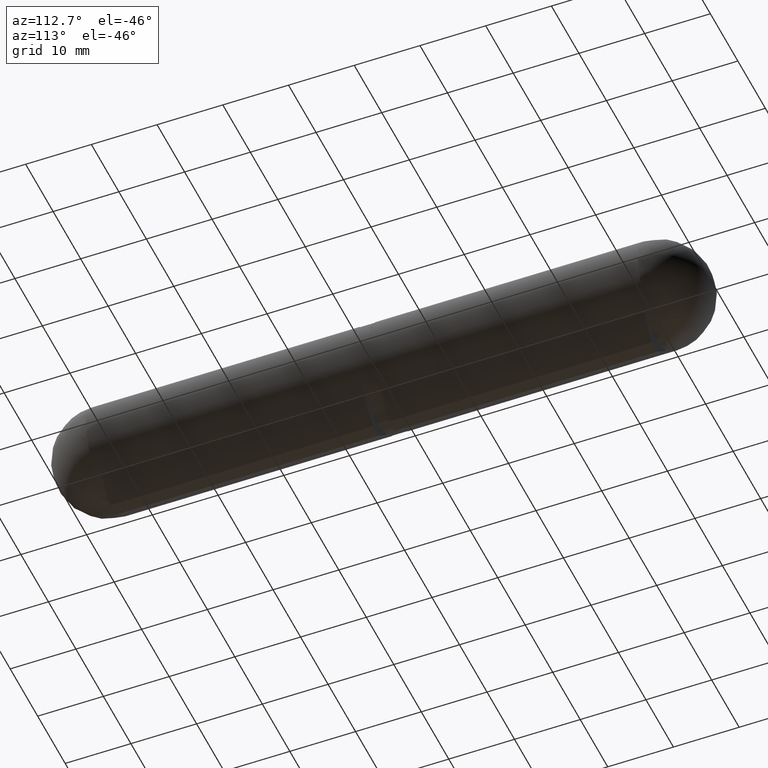
[diagram: clean part render]
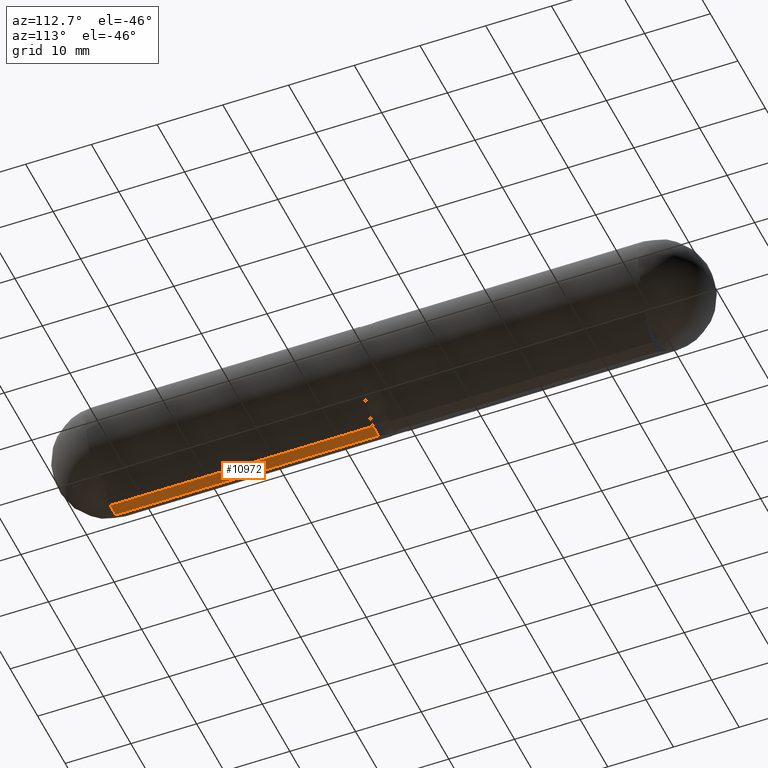
[diagram: same view with one face highlighted and labeled with its STEP entity id]
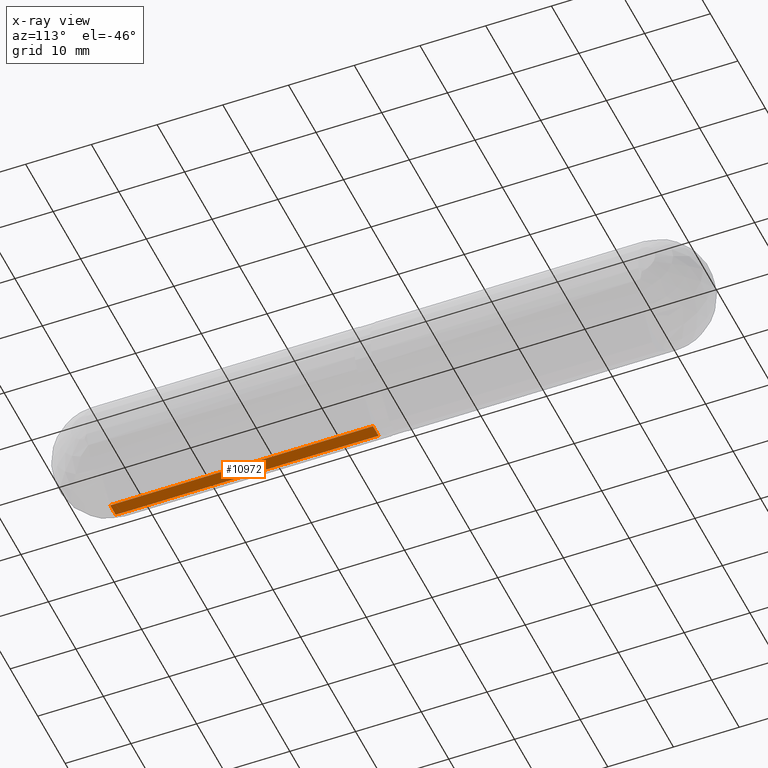
[diagram: x-ray of the same camera — body ghosted, the highlighted face saturated]
A machine part, auxiliary view. The second image highlights one B-rep face of the part: STEP entity #10972.
The next image is the same camera in x-ray: the body ghosted, the highlighted face saturated — about 0% of this face is hidden behind the body in this view.
In plain terms, the highlighted planar face has unit normal (0, 0, -1).
Its self-contained STEP definition (entity closure, byte-faithful):
#96 = CARTESIAN_POINT ( 'NONE',  ( 1.000000000000000000, 8.750000000000000000, -10.00000000000000000 ) ) ;
#697 = AXIS2_PLACEMENT_3D ( 'NONE', #3124, #6130, #10112 ) ;
#867 = DIRECTION ( 'NONE',  ( -1.000000000000000000, -0.000000000000000000, -0.000000000000000000 ) ) ;
#1497 = CARTESIAN_POINT ( 'NONE',  ( -1.000000000000000000, 48.75000000000000000, -10.00000000000000000 ) ) ;
#1499 = VERTEX_POINT ( 'NONE', #6660 ) ;
#1739 = LINE ( 'NONE', #3412, #3250 ) ;
#1977 = VECTOR ( 'NONE', #2572, 1000.000000000000000 ) ;
#2038 = VECTOR ( 'NONE', #5152, 1000.000000000000000 ) ;
#2096 = VERTEX_POINT ( 'NONE', #1497 ) ;
#2572 = DIRECTION ( 'NONE',  ( 0.000000000000000000, 1.000000000000000000, 0.000000000000000000 ) ) ;
#2976 = LINE ( 'NONE', #11073, #2038 ) ;
#2997 = VECTOR ( 'NONE', #867, 1000.000000000000000 ) ;
#3025 = ORIENTED_EDGE ( 'NONE', *, *, #11579, .F. ) ;
#3044 = LINE ( 'NONE', #11505, #1977 ) ;
#3124 = CARTESIAN_POINT ( 'NONE',  ( -1.000000000000000000, 8.750000000000000000, -10.00000000000000000 ) ) ;
#3250 = VECTOR ( 'NONE', #10268, 1000.000000000000000 ) ;
#3412 = CARTESIAN_POINT ( 'NONE',  ( 1.000000000000000000, 8.750000000000000000, -10.00000000000000000 ) ) ;
#4111 = EDGE_CURVE ( 'NONE', #1499, #2096, #3044, .T. ) ;
#5152 = DIRECTION ( 'NONE',  ( -1.000000000000000000, -0.000000000000000000, -0.000000000000000000 ) ) ;
#6130 = DIRECTION ( 'NONE',  ( 0.000000000000000000, 0.000000000000000000, -1.000000000000000000 ) ) ;
#6300 = ORIENTED_EDGE ( 'NONE', *, *, #8943, .T. ) ;
#6540 = LINE ( 'NONE', #6704, #2997 ) ;
#6660 = CARTESIAN_POINT ( 'NONE',  ( -1.000000000000000000, 8.750000000000000000, -10.00000000000000000 ) ) ;
#6684 = VERTEX_POINT ( 'NONE', #96 ) ;
#6704 = CARTESIAN_POINT ( 'NONE',  ( -1.000000000000000000, 8.750000000000000000, -10.00000000000000000 ) ) ;
#7113 = CARTESIAN_POINT ( 'NONE',  ( 1.000000000000000000, 48.75000000000000000, -10.00000000000000000 ) ) ;
#7165 = EDGE_LOOP ( 'NONE', ( #11147, #3025, #6300, #12410 ) ) ;
#7282 = VERTEX_POINT ( 'NONE', #7113 ) ;
#8943 = EDGE_CURVE ( 'NONE', #6684, #1499, #6540, .T. ) ;
#10112 = DIRECTION ( 'NONE',  ( -1.000000000000000000, 0.000000000000000000, -0.000000000000000000 ) ) ;
#10268 = DIRECTION ( 'NONE',  ( 0.000000000000000000, 1.000000000000000000, 0.000000000000000000 ) ) ;
#10972 = ADVANCED_FACE ( 'NONE', ( #11622 ), #11026, .T. ) ;
#11003 = EDGE_CURVE ( 'NONE', #7282, #2096, #2976, .T. ) ;
#11026 = PLANE ( 'NONE',  #697 ) ;
#11073 = CARTESIAN_POINT ( 'NONE',  ( -1.000000000000000000, 48.75000000000000000, -10.00000000000000000 ) ) ;
#11147 = ORIENTED_EDGE ( 'NONE', *, *, #11003, .F. ) ;
#11505 = CARTESIAN_POINT ( 'NONE',  ( -1.000000000000000000, 8.750000000000000000, -10.00000000000000000 ) ) ;
#11579 = EDGE_CURVE ( 'NONE', #6684, #7282, #1739, .T. ) ;
#11622 = FACE_OUTER_BOUND ( 'NONE', #7165, .T. ) ;
#12410 = ORIENTED_EDGE ( 'NONE', *, *, #4111, .T. ) ;